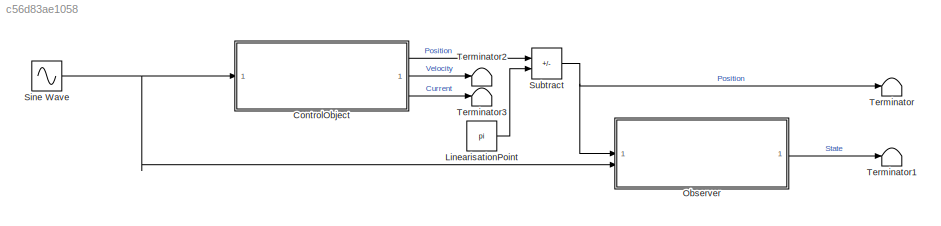
MODEL slx_c56d83ae1058
KIND model
CONFIG AbsTol = auto
CONFIG EnableMultiTasking = off
CONFIG FixedStep = auto
CONFIG MaxStep = 0.01
CONFIG MinStep = auto
CONFIG RelTol = 1e-3
CONFIG SampleTimeConstraint = Unconstrained
CONFIG SolverName = VariableStepAuto
CONFIG StartTime = 0.0
CONFIG StopTime = 100
BLOCK [SubSystem] ControlObject
  ReferencedSubsystem = ControlObject
BLOCK [Constant] LinearisationPoint
  Value = pi
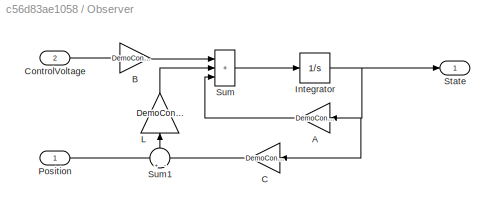
BLOCK [SubSystem] Observer
BLOCK [Gain] Observer/A
  Gain = DemoControllers.Observer.A
  Multiplication = Matrix(K*u)
BLOCK [Gain] Observer/B
  Gain = DemoControllers.Observer.B
  Multiplication = Matrix(K*u)
BLOCK [Gain] Observer/C
  Gain = DemoControllers.Observer.C
  Multiplication = Matrix(K*u)
BLOCK [Inport] Observer/ControlVoltage
  Port = 2
BLOCK [Integrator] Observer/Integrator
BLOCK [Gain] Observer/L
  Gain = DemoControllers.Observer.L
  Multiplication = Matrix(K*u)
  NameLocation = right
BLOCK [Inport] Observer/Position
BLOCK [Outport] Observer/State
BLOCK [Sum] Observer/Sum
  IconShape = rectangular
  Inputs = +++
BLOCK [Sum] Observer/Sum1
  Inputs = +|-
  NameLocation = right
BLOCK [Sin] Sine Wave
  Amplitude = 5
  SampleTime = 0
BLOCK [Sum] Subtract
  IconShape = rectangular
  Inputs = +-
BLOCK [Terminator] Terminator
BLOCK [Terminator] Terminator1
BLOCK [Terminator] Terminator2
BLOCK [Terminator] Terminator3
LINE ControlObject:1 -> Subtract:1
LINE ControlObject:2 -> Terminator2:1
LINE ControlObject:3 -> Terminator3:1
LINE LinearisationPoint:1 -> Subtract:2
LINE Observer/A:1 -> Observer/Sum:3
LINE Observer/B:1 -> Observer/Sum:1
LINE Observer/C:1 -> Observer/Sum1:2
LINE Observer/ControlVoltage:1 -> Observer/B:1
NET Observer/Integrator:1 -> Observer/A:1, Observer/C:1, Observer/State:1
LINE Observer/L:1 -> Observer/Sum:2
LINE Observer/Position:1 -> Observer/Sum1:1
LINE Observer/Sum1:1 -> Observer/L:1
LINE Observer/Sum:1 -> Observer/Integrator:1
LINE Observer:1 -> Terminator1:1
NET Sine Wave:1 -> ControlObject:1, Observer:2
NET Subtract:1 -> Observer:1, Terminator:1
note: NET lines group one-source signal fan-out (src -> all destinations, sorted); 1:1 wires keep LINE
